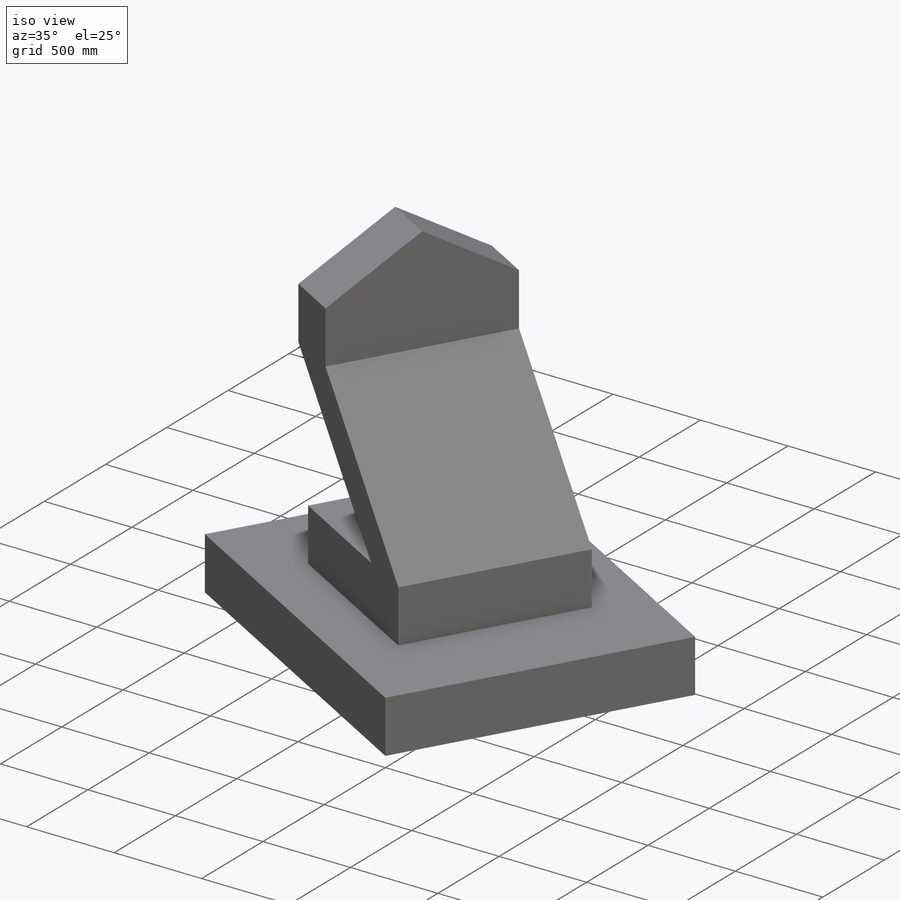
[diagram: iso view]
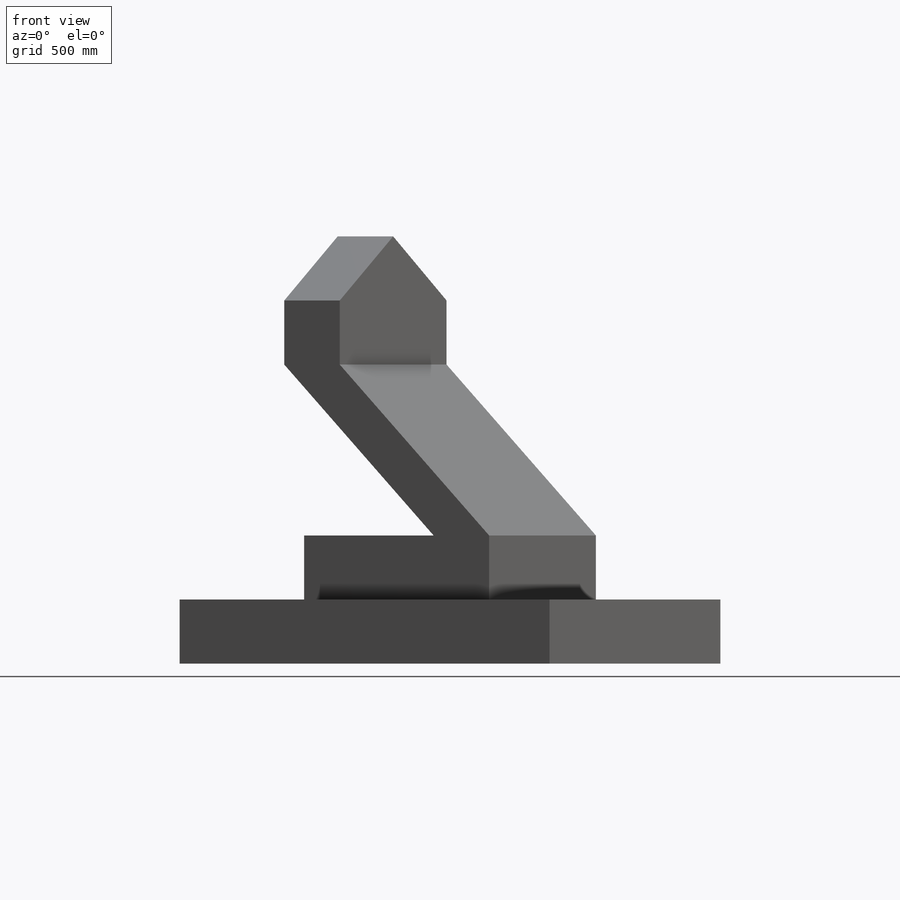
[diagram: front view]
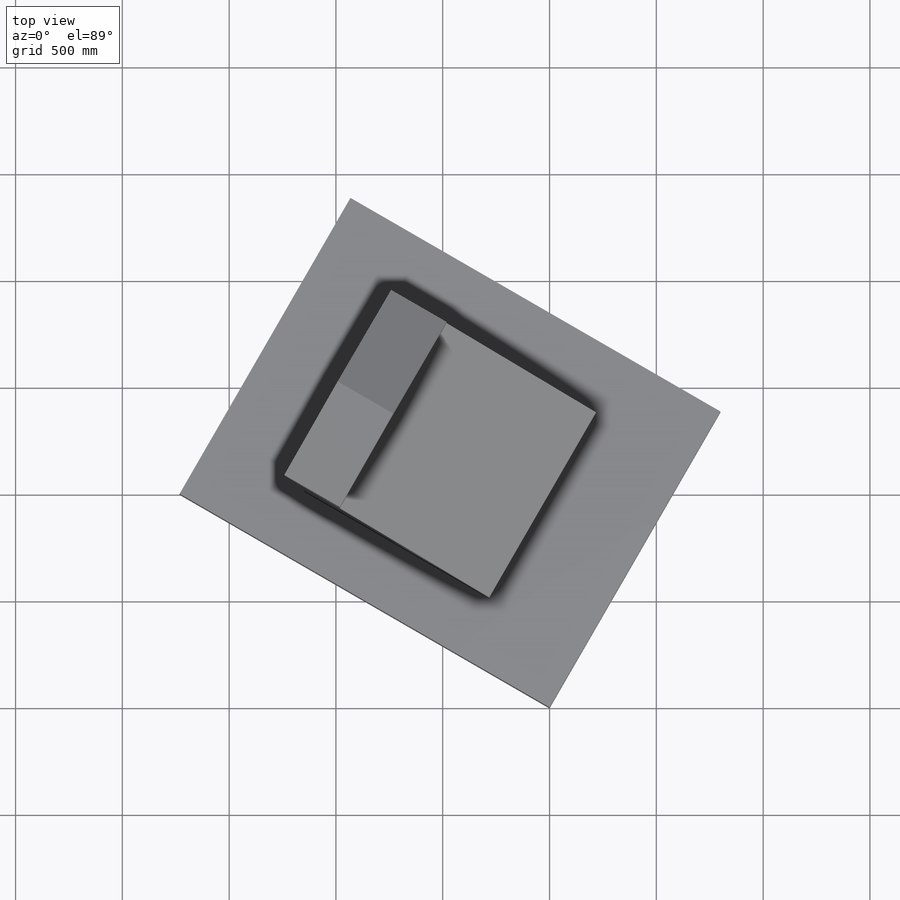
[diagram: top view]
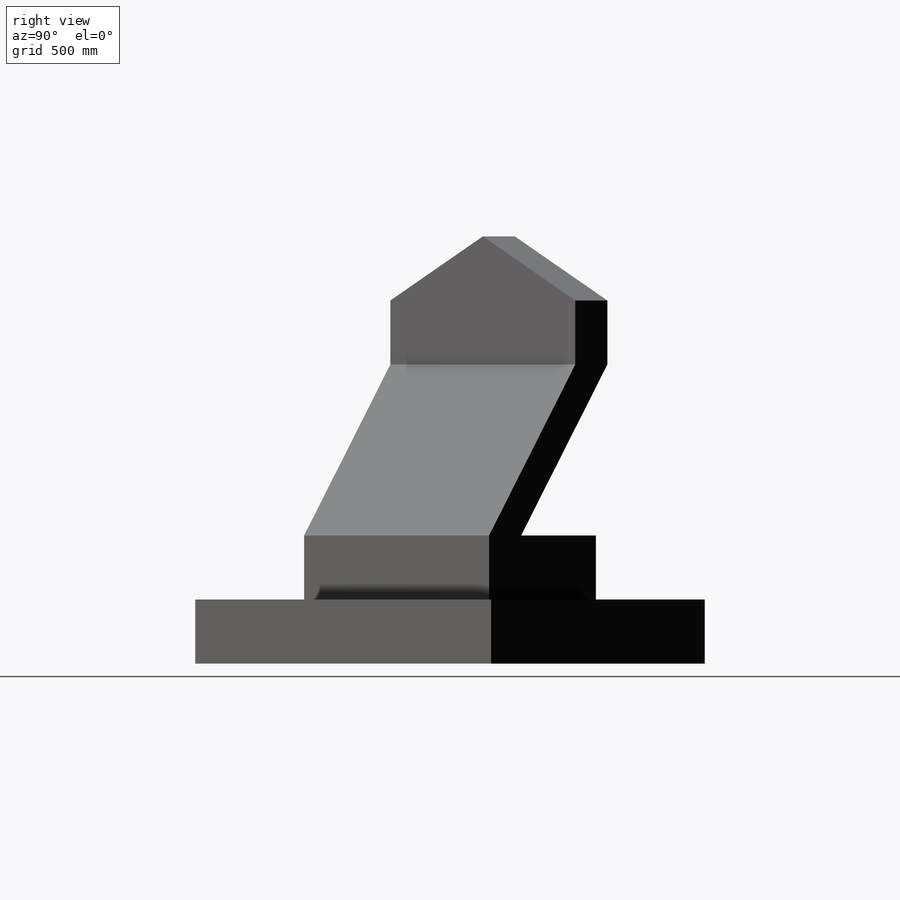
[diagram: right view]
SOLIDWORKS PART (.sldprt)
format: sldprt  version: not decoded by parser v0  size: 313,856 bytes
history: native  units: mm
features: sketch x4, extrude x4, material x1 (+14 scaffold rows collapsed)
feature tree (23):
  scaffold x14  (default folders/planes/origin — collapsed)
  material  "Material <not specified>"
  sketch  "Sketch1"  dims[c1.D1=~54.010374mm c2.D1=60.0deg c2.D2=2000.0mm c2.D3=1600.0mm]
  extrude  "Extrude1"  Depth=300mm
  sketch  "Sketch2"  dims[D1=500.0mm D2=500.0mm D3=300.0mm D4=300.0mm]
  extrude  "Extrude2"  Depth=300mm
  sketch  "Sketch3"  dims[D1=300.0mm D2=300.0mm D3=800.0mm D4=300.0mm D5=300.0mm]
  extrude  "Extrude3"  Depth=1000mm
  sketch  "Sketch4"  dims[D1=300.0mm]
  extrude  "Extrude4"  Depth=300mm
decode coverage: 8 of 8 modeling features carry decoded parameters
note: ~ marks probable driven/reference dimensions
note: suppression state not decoded; provenance and decode notes live in map.json
